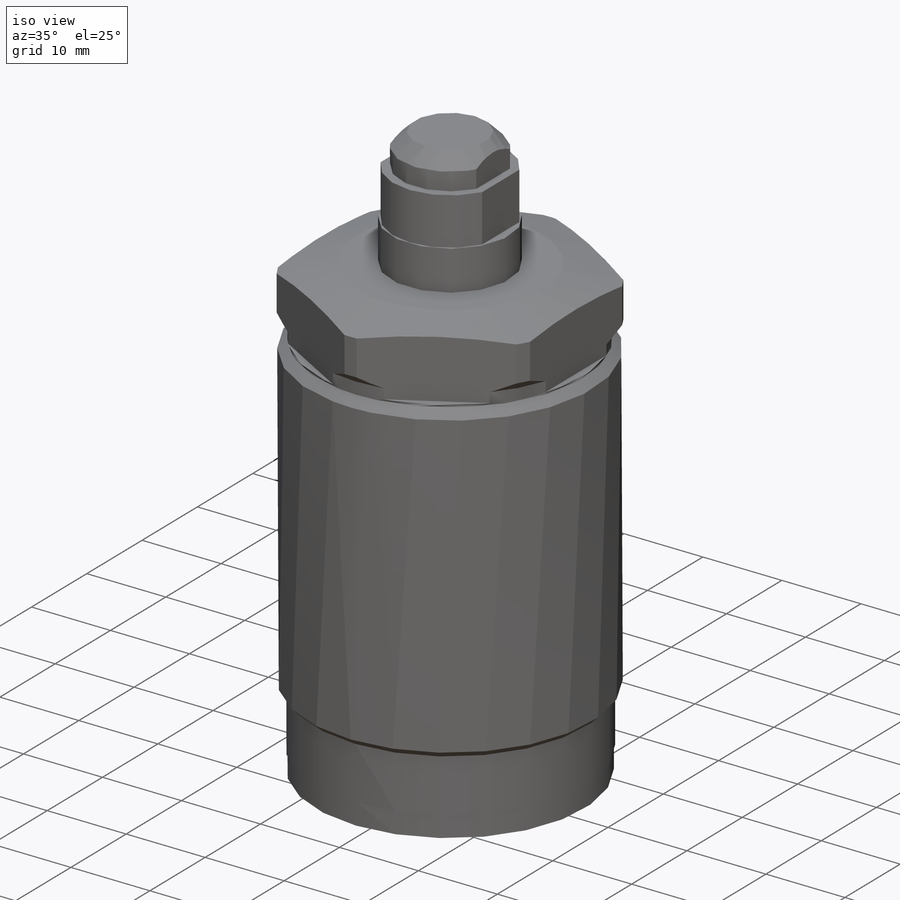
[diagram: iso view]
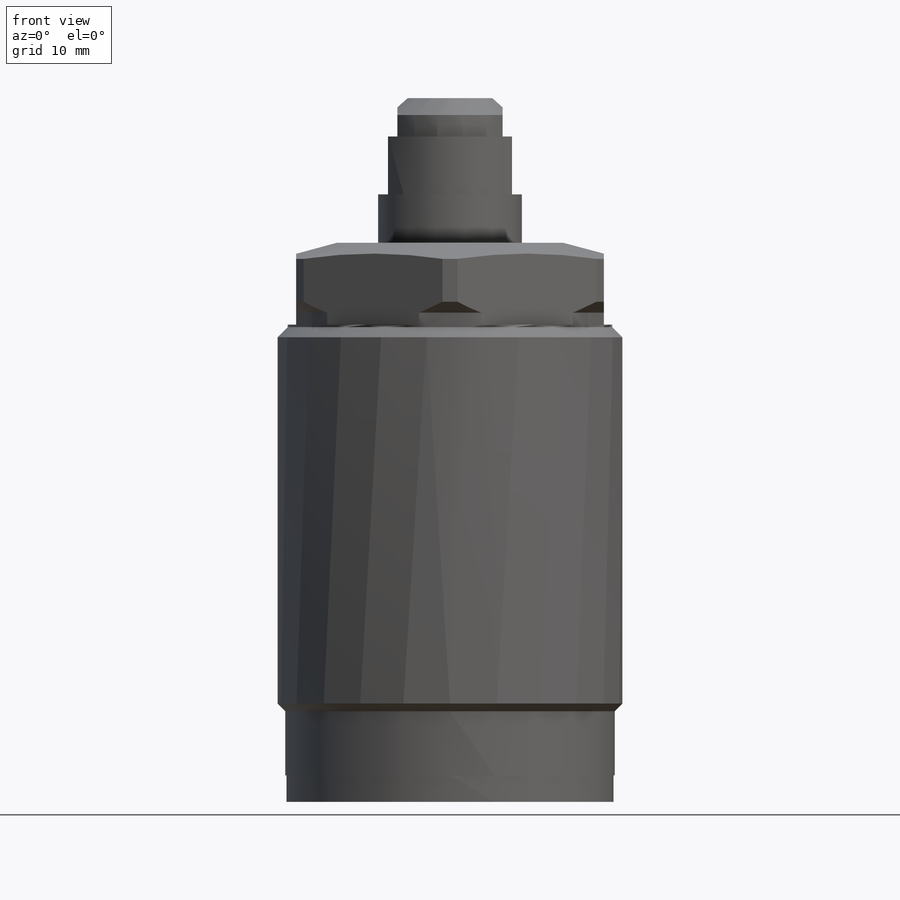
[diagram: front view]
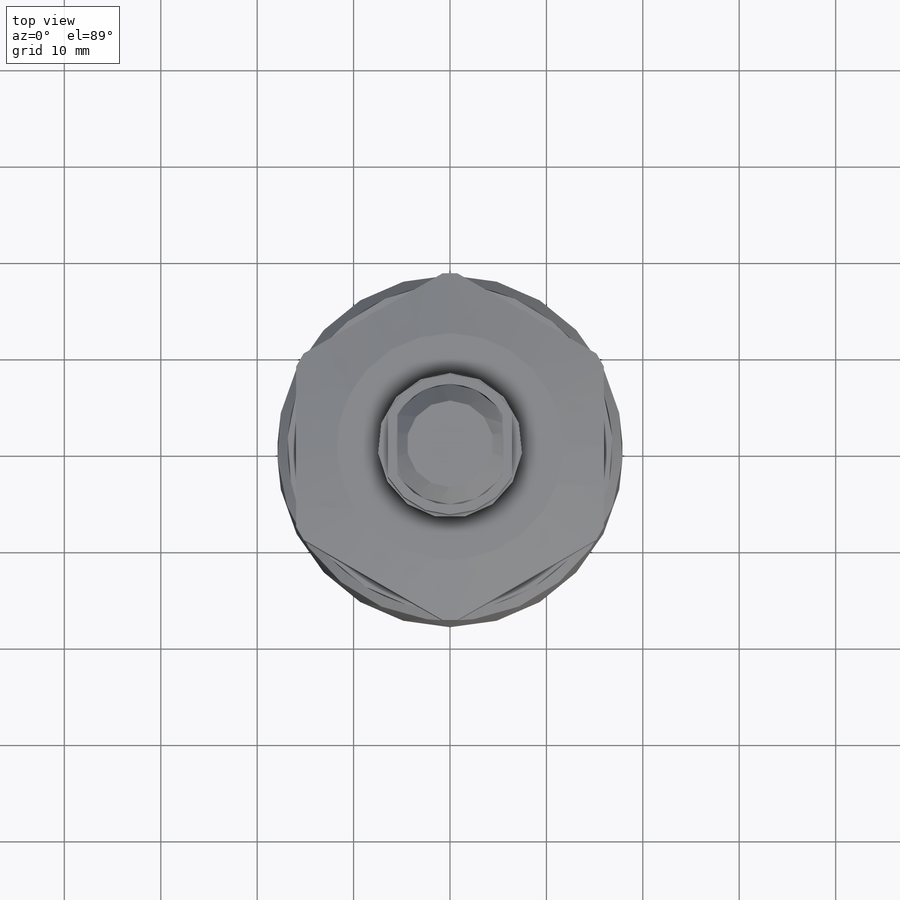
[diagram: top view]
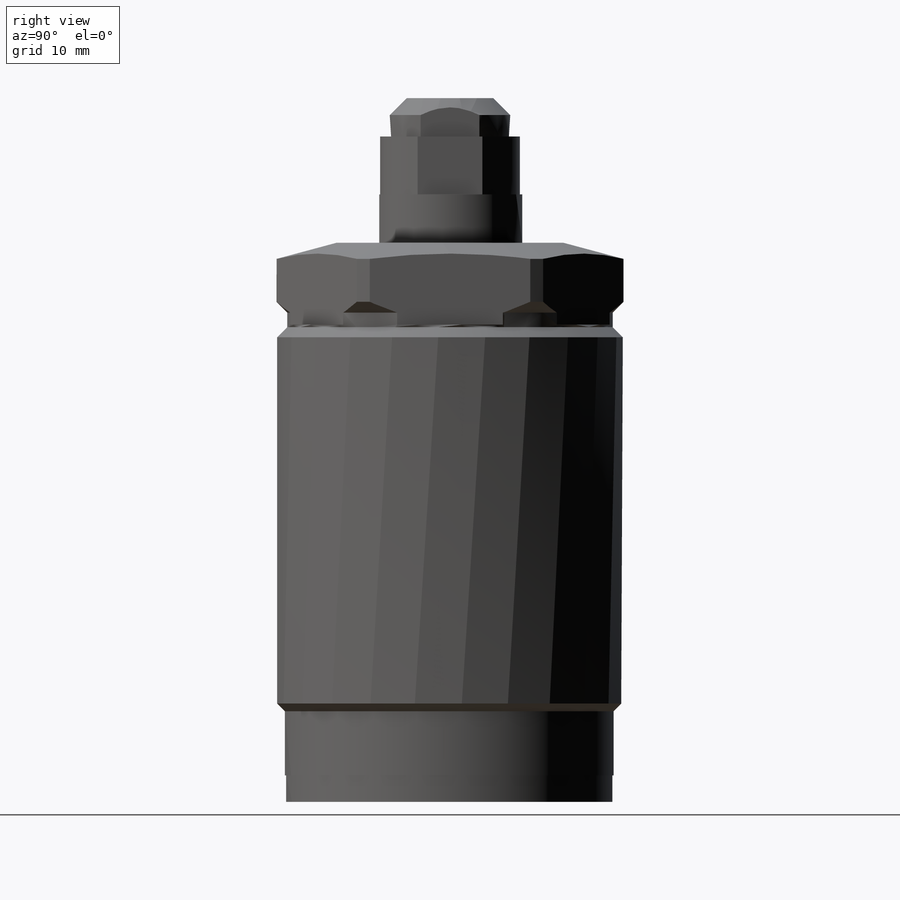
[diagram: right view]
SOLIDWORKS PART (.sldprt)
format: sldprt  version: not decoded by parser v0  size: 238,592 bytes
history: native  units: mm
features: sketch x5, cut_extrude x3, revolve x2, material x1, chamfer x1 (+13 scaffold rows collapsed)
feature tree (25):
  scaffold x13  (default folders/planes/origin — collapsed)
  material  "Alloy Steel"
  sketch  "Sketch1"  dims[c1.D1=34.25mm c1.D2=9.4mm c1.D3=2.75mm c1.D4=34.0mm c1.D5=~3.996569mm c2.D5=45.0deg c2.D6=35.85mm c2.D7=58.0mm c2.D8=~11.557433mm c3.D8=15.0deg c3.D9=23.5mm c3.D10=36.0mm c3.D11=8.75mm c3.D12=33.75mm c3.D13=1.5mm]
  revolve  "Revolve1"  Angle=360deg
  sketch  "Sketch2"  dims[D1=31.92mm]
  cut_extrude  "Cut-Extrude1"  Depth=8.5mm
  sketch  "Sketch4"  dims[D1=73.0mm D2=3.988mm D3=12.5mm D4=15.0mm D5=14.5mm D6=9.982mm]
  revolve  "Revolve2"  Angle=360deg
  chamfer  "Chamfer1"  Distance=1.754mm Angle=45deg
  sketch  "Sketch5"  dims[D1=10.92mm]
  cut_extrude  "Cut-Extrude2"  [1 undecoded]
  sketch  "Sketch6"  dims[D1=12.85mm]
  cut_extrude  "Cut-Extrude3"  [1 undecoded]
decode coverage: 9 of 11 modeling features carry decoded parameters
note: ~ marks probable driven/reference dimensions
note: 2 parameter values undecoded
note: suppression state not decoded; provenance and decode notes live in map.json
